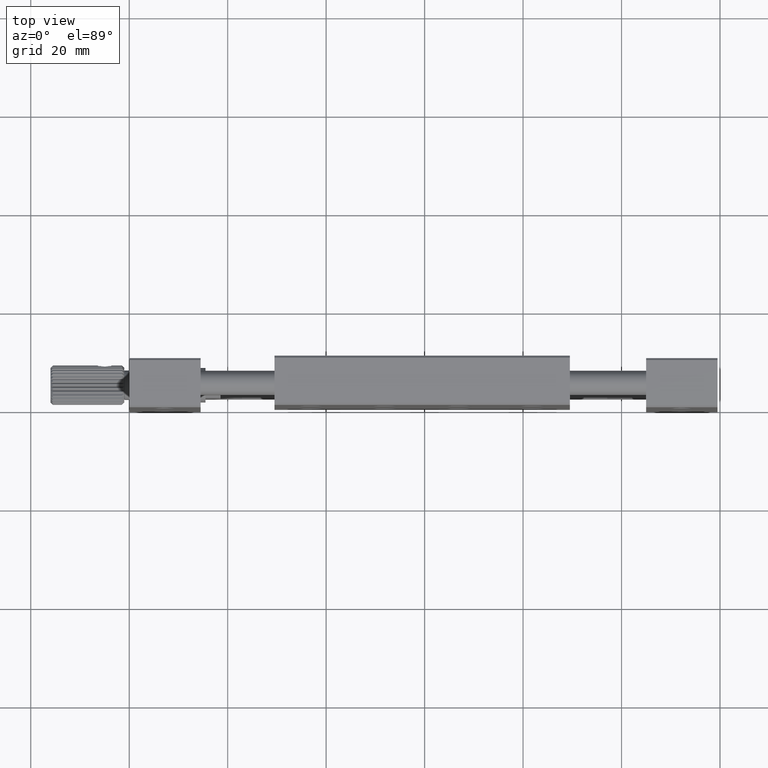
[diagram: clean part render]
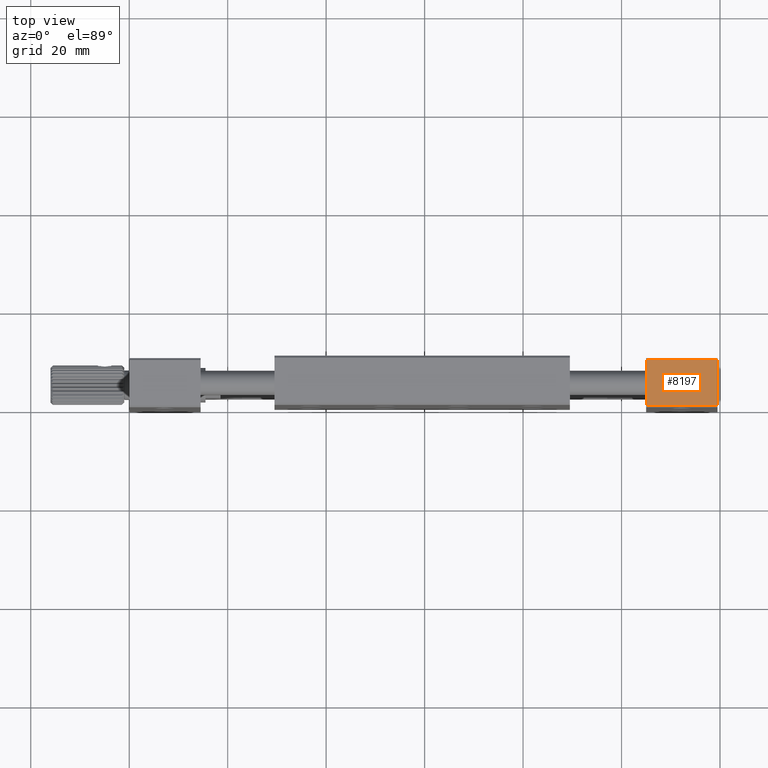
[diagram: same view with one face highlighted and labeled with its STEP entity id]
A machine part, top view. The second image highlights one B-rep face of the part: STEP entity #8197.
In plain terms, the highlighted planar face has unit normal (0, 0, -1).
Its self-contained STEP definition (entity closure, byte-faithful):
#439 = VERTEX_POINT ( 'NONE', #3834 ) ;
#751 = PLANE ( 'NONE',  #3544 ) ;
#810 = VECTOR ( 'NONE', #4334, 1000.000000000000000 ) ;
#1156 = ORIENTED_EDGE ( 'NONE', *, *, #4849, .T. ) ;
#1788 = CARTESIAN_POINT ( 'NONE',  ( 119.5000000000000000, 0.4100000000000003086, 1.694065894508600062E-17 ) ) ;
#1976 = EDGE_CURVE ( 'NONE', #439, #7225, #7590, .T. ) ;
#2313 = CARTESIAN_POINT ( 'NONE',  ( 105.0000000000000000, 0.000000000000000000, 5.421010862427519705E-17 ) ) ;
#2444 = CARTESIAN_POINT ( 'NONE',  ( 119.5000000000000000, 9.589999999999999858, 0.000000000000000000 ) ) ;
#3006 = EDGE_CURVE ( 'NONE', #8690, #439, #8493, .T. ) ;
#3124 = VERTEX_POINT ( 'NONE', #6098 ) ;
#3268 = DIRECTION ( 'NONE',  ( -1.000000000000000000, 0.000000000000000000, -0.000000000000000000 ) ) ;
#3374 = VECTOR ( 'NONE', #4421, 1000.000000000000000 ) ;
#3441 = CARTESIAN_POINT ( 'NONE',  ( 119.5000000000000000, 9.589999999999999858, 0.000000000000000000 ) ) ;
#3469 = VECTOR ( 'NONE', #4188, 1000.000000000000000 ) ;
#3475 = EDGE_LOOP ( 'NONE', ( #8474, #5398, #8415, #1156 ) ) ;
#3544 = AXIS2_PLACEMENT_3D ( 'NONE', #3441, #5470, #3268 ) ;
#3834 = CARTESIAN_POINT ( 'NONE',  ( 119.5000000000000000, 9.590000000000001634, -2.710505431213761085E-16 ) ) ;
#4188 = DIRECTION ( 'NONE',  ( 0.000000000000000000, -1.000000000000000000, -0.000000000000000000 ) ) ;
#4334 = DIRECTION ( 'NONE',  ( 1.000000000000000000, -0.000000000000000000, 0.000000000000000000 ) ) ;
#4379 = LINE ( 'NONE', #2313, #3374 ) ;
#4421 = DIRECTION ( 'NONE',  ( 0.000000000000000000, -1.000000000000000000, -0.000000000000000000 ) ) ;
#4849 = EDGE_CURVE ( 'NONE', #8690, #3124, #4379, .T. ) ;
#4887 = CARTESIAN_POINT ( 'NONE',  ( 119.5000000000000000, 0.000000000000000000, 5.421010862427519705E-17 ) ) ;
#5398 = ORIENTED_EDGE ( 'NONE', *, *, #1976, .F. ) ;
#5470 = DIRECTION ( 'NONE',  ( 0.000000000000000000, 0.000000000000000000, -1.000000000000000000 ) ) ;
#6098 = CARTESIAN_POINT ( 'NONE',  ( 105.0000000000000000, 0.4100000000000001421, 1.635934743230549108E-17 ) ) ;
#6393 = LINE ( 'NONE', #8506, #8208 ) ;
#6810 = FACE_OUTER_BOUND ( 'NONE', #3475, .T. ) ;
#7225 = VERTEX_POINT ( 'NONE', #1788 ) ;
#7590 = LINE ( 'NONE', #4887, #3469 ) ;
#7882 = CARTESIAN_POINT ( 'NONE',  ( 105.0000000000000000, 9.589999999999999858, -1.558540622947912624E-16 ) ) ;
#8197 = ADVANCED_FACE ( 'NONE', ( #6810 ), #751, .F. ) ;
#8208 = VECTOR ( 'NONE', #8375, 1000.000000000000000 ) ;
#8375 = DIRECTION ( 'NONE',  ( 1.000000000000000000, -0.000000000000000000, 0.000000000000000000 ) ) ;
#8415 = ORIENTED_EDGE ( 'NONE', *, *, #3006, .F. ) ;
#8474 = ORIENTED_EDGE ( 'NONE', *, *, #8757, .T. ) ;
#8493 = LINE ( 'NONE', #2444, #810 ) ;
#8506 = CARTESIAN_POINT ( 'NONE',  ( 119.5000000000000000, 0.4099999999999999756, 0.000000000000000000 ) ) ;
#8690 = VERTEX_POINT ( 'NONE', #7882 ) ;
#8757 = EDGE_CURVE ( 'NONE', #3124, #7225, #6393, .T. ) ;